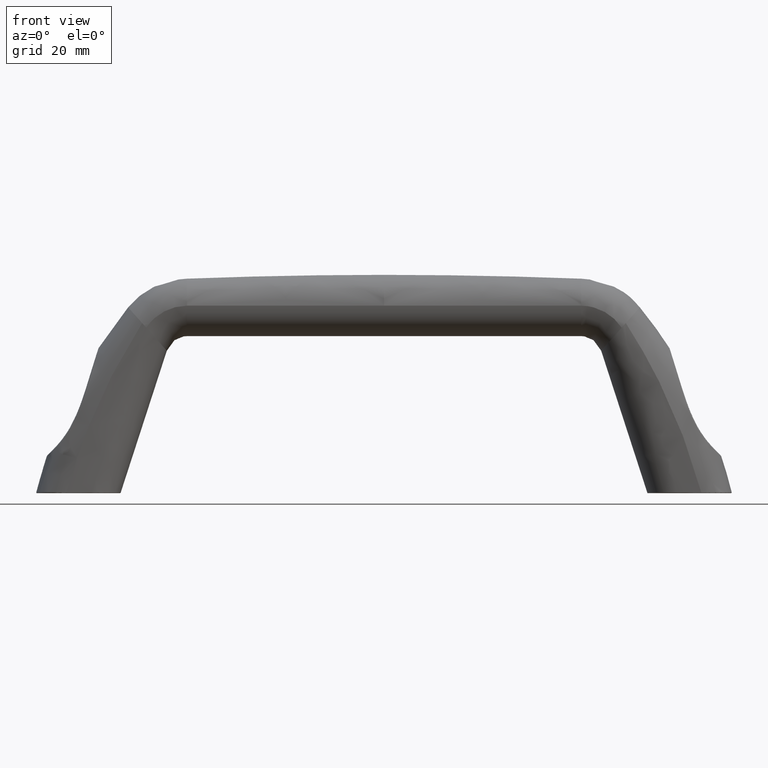
[diagram: clean part render]
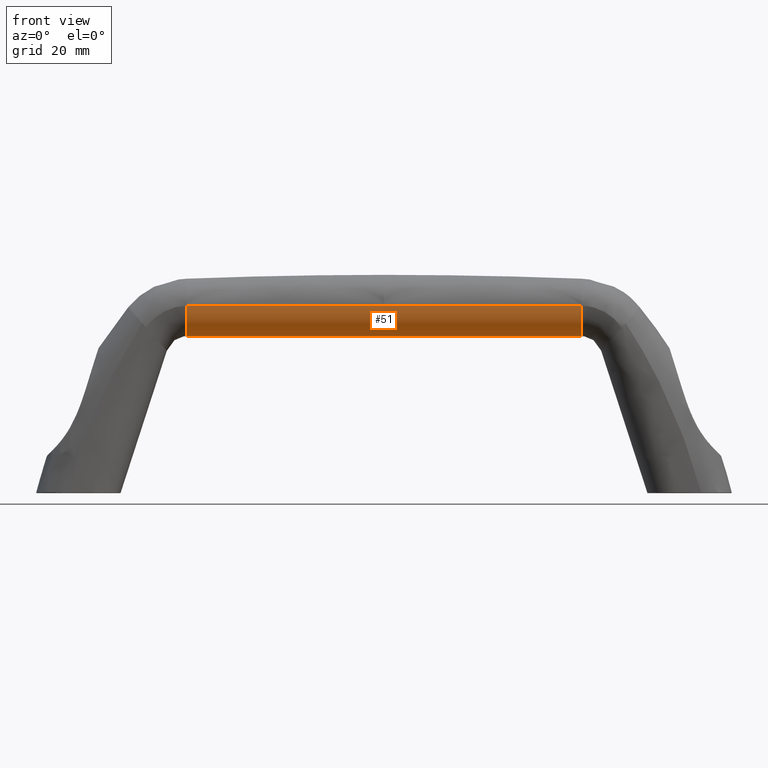
[diagram: same view with one face highlighted and labeled with its STEP entity id]
A machine part, front view. The second image highlights one B-rep face of the part: STEP entity #51.
In plain terms, the highlighted cylindrical surface (edge-blend (fillet) strip) has radius 7.9499 mm, axis along (1, 0, -0).
Its self-contained STEP definition (entity closure, byte-faithful):
#51=ADVANCED_FACE('',(#203),#202,.T.);
#202=CYLINDRICAL_SURFACE('',#1675,7.94993868314E+00);
#203=FACE_OUTER_BOUND('',#1676,.T.);
#1672=CARTESIAN_POINT('',(-1.05739662170E+02,2.84999386979E+01,7.04499386675E+01));
#1673=DIRECTION('',(1.00000000000E+00,2.20225258419E-12,-2.20225258419E-12));
#1674=DIRECTION('',(-3.11445547234E-12,7.07106781187E-01,-7.07106781187E-01));
#1675=AXIS2_PLACEMENT_3D('',#1672,#1673,#1674);
#1676=EDGE_LOOP('',(#4129,#4130,#4131,#4132,#4133));
#4129=ORIENTED_EDGE('',*,*,#4357,.T.);
#4130=ORIENTED_EDGE('',*,*,#4352,.F.);
#4131=ORIENTED_EDGE('',*,*,#4358,.T.);
#4132=ORIENTED_EDGE('',*,*,#4359,.F.);
#4133=ORIENTED_EDGE('',*,*,#4360,.T.);
#4352=EDGE_CURVE('',#4667,#4646,#4674,.T.);
#4357=EDGE_CURVE('',#4706,#4646,#4707,.T.);
#4358=EDGE_CURVE('',#4667,#4713,#4714,.T.);
#4359=EDGE_CURVE('',#4720,#4713,#4721,.T.);
#4360=EDGE_CURVE('',#4720,#4706,#4727,.T.);
#4646=VERTEX_POINT('',#5808);
#4667=VERTEX_POINT('',#5853);
#4674=CIRCLE('',#5861,7.95000000009E+00);
#4706=VERTEX_POINT('',#5891);
#4707=LINE('',#5892,#5893);
#4713=VERTEX_POINT('',#5895);
#4714=LINE('',#5896,#5897);
#4720=VERTEX_POINT('',#5899);
#4721=CIRCLE('',#5903,7.95000000014E+00);
#4727=LINE('',#5904,#5905);
#5808=CARTESIAN_POINT('',(-1.31479321268E+02,2.05500000150E+01,7.04499999848E+01));
#5853=CARTESIAN_POINT('',(-1.31479321268E+02,2.85000000150E+01,6.24999999847E+01));
#5858=CARTESIAN_POINT('',(-1.31479321268E+02,2.85000000151E+01,7.04499999848E+01));
#5859=DIRECTION('',(-1.00000000000E+00,-8.63095300291E-15,-7.15011557979E-15));
#5860=DIRECTION('',(-7.15011557989E-15,1.15849747683E-11,1.00000000000E+00));
#5861=AXIS2_PLACEMENT_3D('',#5858,#5859,#5860);
#5891=CARTESIAN_POINT('',(-8.00000000000E+01,2.05500000150E+01,7.04499999843E+01));
#5892=CARTESIAN_POINT('',(-8.00000000000E+01,2.05500000150E+01,7.04499999843E+01));
#5893=VECTOR('',#5894,5.14793212678E+01);
#5894=DIRECTION('',(-1.00000000000E+00,0.00000000000E+00,9.71253505264E-12));
#5895=CARTESIAN_POINT('',(-2.85206787322E+01,2.85000000150E+01,6.24999999847E+01));
#5896=CARTESIAN_POINT('',(-1.31479321268E+02,2.85000000150E+01,6.24999999847E+01));
#5897=VECTOR('',#5898,1.02958642536E+02);
#5898=DIRECTION('',(1.00000000000E+00,0.00000000000E+00,-2.16008943801E-12));
#5899=CARTESIAN_POINT('',(-2.85206787322E+01,2.05500000150E+01,7.04499999848E+01));
#5900=CARTESIAN_POINT('',(-2.85206787322E+01,2.85000000151E+01,7.04499999848E+01));
#5901=DIRECTION('',(1.00000000000E+00,-3.12817556618E-15,-3.23660737606E-15));
#5902=DIRECTION('',(3.12817556619E-15,1.00000000000E+00,4.29006934791E-13));
#5903=AXIS2_PLACEMENT_3D('',#5900,#5901,#5902);
#5904=CARTESIAN_POINT('',(-2.85206787322E+01,2.05500000150E+01,7.04499999848E+01));
#5905=VECTOR('',#5906,5.14793212678E+01);
#5906=DIRECTION('',(-1.00000000000E+00,0.00000000000E+00,-9.71253505264E-12));